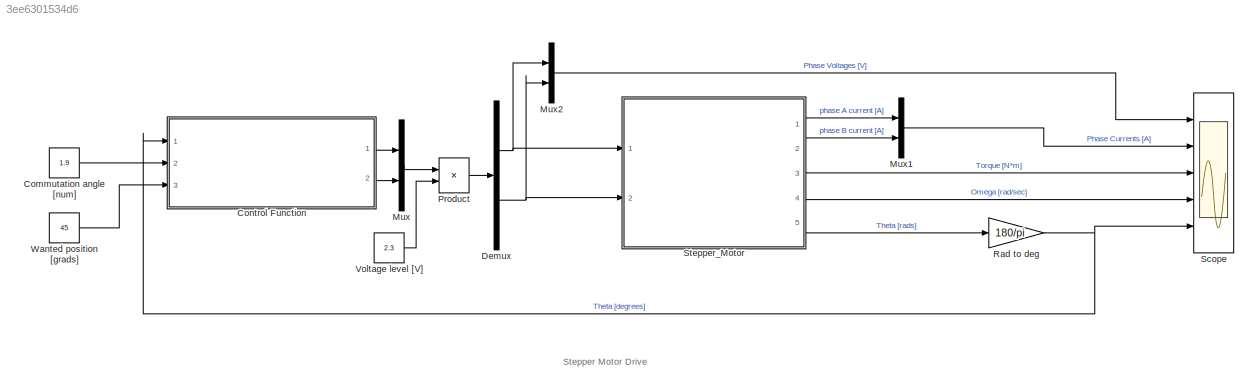
MODEL slx_3ee6301534d6
KIND model
CONFIG PreLoadFcn = assignin('base','Ts',1e-6);
WORKSPACE source: MAT-file member
WORKSPACE K_m = 0.4247
WORKSPACE D = 0.001
BLOCK [Constant] Commutation angle [num]
  Value = 1.9
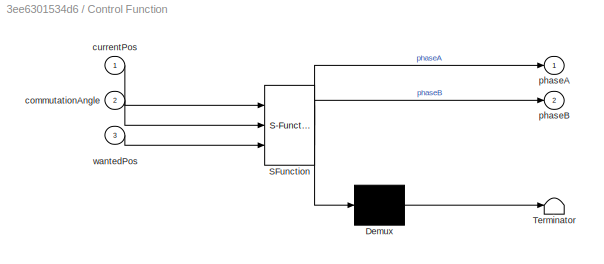
BLOCK [SubSystem] Control Function
  ErrorFcn = Stateflow.Translate.translate
  FunctionWithSeparateData = off
  MaskHideContents = off
  MinAlgLoopOccurrences = off
  Opaque = off
  PermitHierarchicalResolution = ExplicitOnly
  Ports = [3, 2]
  PropExecContextOutsideSubsystem = off
  RTWSystemCode = Auto
  RequestExecContextInheritance = off
  SFBlockType = MATLAB Function
  TreatAsAtomicUnit = on
BLOCK [Demux] Control Function/ Demux 
  Outputs = 1
  Ports = [1, 1]
BLOCK [S-Function] Control Function/ SFunction 
  EnableBusSupport = on
  FunctionName = sf_sfun
  PortCounts = [3 3]
  Ports = [3, 3]
  Tag = Stateflow S-Function steppermotor_not_matlab_model 2
BLOCK [Terminator] Control Function/ Terminator 
BLOCK [Inport] Control Function/commutationAngle
  IconDisplay = Port number
  Port = 2
BLOCK [Inport] Control Function/currentPos
  IconDisplay = Port number
BLOCK [Outport] Control Function/phaseA
  IconDisplay = Port number
BLOCK [Outport] Control Function/phaseB
  IconDisplay = Port number
  Port = 2
BLOCK [Inport] Control Function/wantedPos
  IconDisplay = Port number
  Port = 3
BLOCK [Demux] Demux
  DisplayOption = bar
  Outputs = 2
  Ports = [1, 2]
BLOCK [Mux] Mux
  DisplayOption = bar
  Inputs = 2
  Ports = [2, 1]
BLOCK [Mux] Mux1
  DisplayOption = bar
  Inputs = 2
  Ports = [2, 1]
BLOCK [Mux] Mux2
  DisplayOption = bar
  Inputs = 2
  Ports = [2, 1]
BLOCK [Product] Product
  InputSameDT = off
  OutDataTypeStr = Inherit: Inherit via internal rule
  Ports = [2, 1]
  RndMeth = Floor
  SaturateOnIntegerOverflow = off
BLOCK [Gain] Rad to deg
  Gain = 180/pi
  OutDataTypeStr = Inherit: Inherit via internal rule
  ParamDataTypeStr = Inherit: Inherit via internal rule
  SaturateOnIntegerOverflow = off
BLOCK [Scope] Scope
  DataFormat = StructureWithTime
  Floating = off
  LimitDataPoints = off
  NumInputPorts = 5
  Ports = [5]
  SampleTime = 0
  SaveName = ScopeData1
  ShowLegends = off
  YMax = 5~5~5~5~5
  YMin = -5~-5~-5~-5~-5
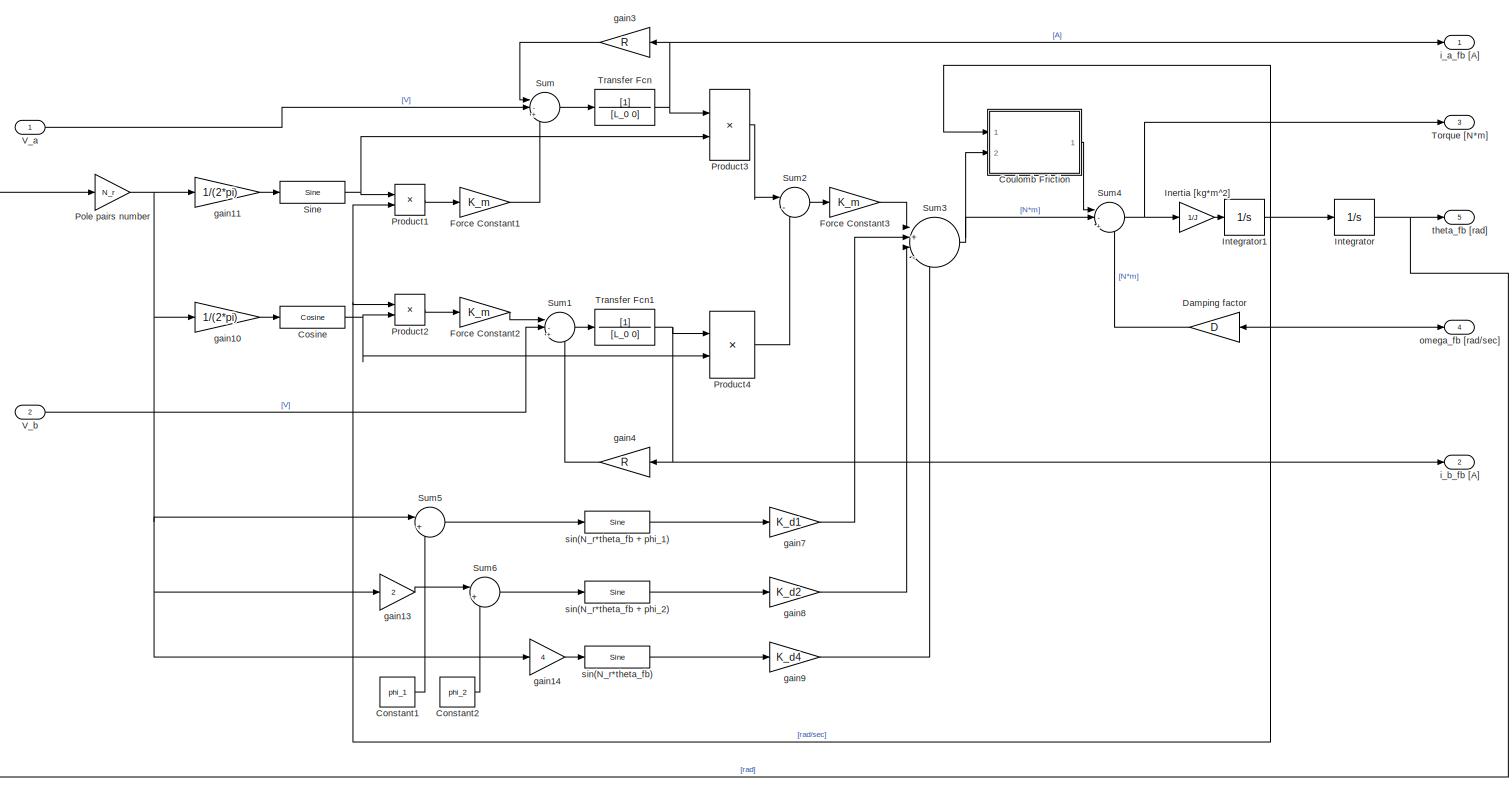
[diagram: Stepper_Motor - part 1/1, most of the canvas]
BLOCK [SubSystem] Stepper_Motor
  FunctionWithSeparateData = off
  MaskHideContents = off
  MinAlgLoopOccurrences = off
  Opaque = off
  Ports = [2, 5]
  PropExecContextOutsideSubsystem = off
  RTWSystemCode = Auto
  RequestExecContextInheritance = off
BLOCK [Constant] Stepper_Motor/Constant1
  Value = phi_1
BLOCK [Constant] Stepper_Motor/Constant2
  Value = phi_2
BLOCK [Reference] Stepper_Motor/Cosine  REF=simulink/Lookup
Tables/Cosine
  Formula = cos(2*pi*u)
  InternalRulePriority = Speed
  NumDataPoints = (2^5)+1
  OutputWordLength = 16
  Ports = [1, 1]
  SourceBlock = simulink/Lookup\nTables/Cosine
  SourceType = Sine and Cosine
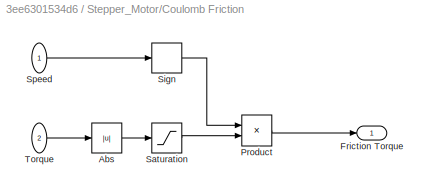
BLOCK [SubSystem] Stepper_Motor/Coulomb Friction
  FunctionWithSeparateData = off
  MaskHideContents = off
  MinAlgLoopOccurrences = off
  Opaque = off
  Ports = [2, 1]
  PropExecContextOutsideSubsystem = off
  RTWSystemCode = Auto
  RequestExecContextInheritance = off
BLOCK [Abs] Stepper_Motor/Coulomb Friction/Abs
  SaturateOnIntegerOverflow = off
BLOCK [Outport] Stepper_Motor/Coulomb Friction/Friction Torque
  IconDisplay = Port number
BLOCK [Product] Stepper_Motor/Coulomb Friction/Product
  InputSameDT = off
  OutDataTypeStr = Inherit: Inherit via internal rule
  Ports = [2, 1]
  RndMeth = Floor
  SaturateOnIntegerOverflow = off
BLOCK [Saturate] Stepper_Motor/Coulomb Friction/Saturation
  InputPortMap = u0
  LowerLimit = -F_s
  Ports = [1, 1]
  UpperLimit = F_s
BLOCK [Signum] Stepper_Motor/Coulomb Friction/Sign
BLOCK [Inport] Stepper_Motor/Coulomb Friction/Speed
  IconDisplay = Port number
BLOCK [Inport] Stepper_Motor/Coulomb Friction/Torque
  IconDisplay = Port number
  Port = 2
BLOCK [Gain] Stepper_Motor/Damping factor
  Gain = D
  OutDataTypeStr = Inherit: Inherit via internal rule
  ParamDataTypeStr = Inherit: Inherit via internal rule
  SaturateOnIntegerOverflow = off
BLOCK [Gain] Stepper_Motor/Force Constant1
  Gain = K_m
  OutDataTypeStr = Inherit: Inherit via internal rule
  ParamDataTypeStr = Inherit: Inherit via internal rule
  SaturateOnIntegerOverflow = off
BLOCK [Gain] Stepper_Motor/Force Constant2
  Gain = K_m
  OutDataTypeStr = Inherit: Inherit via internal rule
  ParamDataTypeStr = Inherit: Inherit via internal rule
  SaturateOnIntegerOverflow = off
BLOCK [Gain] Stepper_Motor/Force Constant3
  Gain = K_m
  OutDataTypeStr = Inherit: Inherit via internal rule
  ParamDataTypeStr = Inherit: Inherit via internal rule
  SaturateOnIntegerOverflow = off
BLOCK [Gain] Stepper_Motor/Inertia [kg*m^2]
  Gain = 1/J
  OutDataTypeStr = Inherit: Inherit via internal rule
  ParamDataTypeStr = Inherit: Inherit via internal rule
  SaturateOnIntegerOverflow = off
BLOCK [Integrator] Stepper_Motor/Integrator
  InitialCondition = start_angle
  Ports = [1, 1]
BLOCK [Integrator] Stepper_Motor/Integrator1
  InitialCondition = start_speed
  Ports = [1, 1]
BLOCK [Gain] Stepper_Motor/Pole pairs number
  Gain = N_r
  OutDataTypeStr = Inherit: Inherit via internal rule
  ParamDataTypeStr = Inherit: Inherit via internal rule
  SaturateOnIntegerOverflow = off
BLOCK [Product] Stepper_Motor/Product1
  InputSameDT = off
  OutDataTypeStr = Inherit: Inherit via internal rule
  Ports = [2, 1]
  RndMeth = Floor
  SaturateOnIntegerOverflow = off
BLOCK [Product] Stepper_Motor/Product2
  InputSameDT = off
  OutDataTypeStr = Inherit: Inherit via internal rule
  Ports = [2, 1]
  RndMeth = Floor
  SaturateOnIntegerOverflow = off
BLOCK [Product] Stepper_Motor/Product3
  InputSameDT = off
  OutDataTypeStr = Inherit: Inherit via internal rule
  Ports = [2, 1]
  RndMeth = Floor
  SaturateOnIntegerOverflow = off
BLOCK [Product] Stepper_Motor/Product4
  InputSameDT = off
  OutDataTypeStr = Inherit: Inherit via internal rule
  Ports = [2, 1]
  RndMeth = Floor
  SaturateOnIntegerOverflow = off
BLOCK [Reference] Stepper_Motor/Sine  REF=simulink/Lookup
Tables/Sine
  Formula = sin(2*pi*u)
  InternalRulePriority = Speed
  NumDataPoints = (2^5)+1
  OutputWordLength = 16
  Ports = [1, 1]
  SourceBlock = simulink/Lookup\nTables/Sine
  SourceType = Sine and Cosine
BLOCK [Sum] Stepper_Motor/Sum
  IconShape = round
  InputSameDT = off
  Inputs = |-++
  OutDataTypeStr = Inherit: Inherit via internal rule
  Ports = [3, 1]
  SaturateOnIntegerOverflow = off
BLOCK [Sum] Stepper_Motor/Sum1
  IconShape = round
  InputSameDT = off
  Inputs = |-+-
  OutDataTypeStr = Inherit: Inherit via internal rule
  Ports = [3, 1]
  SaturateOnIntegerOverflow = off
BLOCK [Sum] Stepper_Motor/Sum2
  IconShape = round
  InputSameDT = off
  Inputs = |-+
  OutDataTypeStr = Inherit: Inherit via internal rule
  Ports = [2, 1]
  SaturateOnIntegerOverflow = off
BLOCK [Sum] Stepper_Motor/Sum3
  IconShape = round
  InputSameDT = off
  Inputs = |+|---
  OutDataTypeStr = Inherit: Inherit via internal rule
  Ports = [4, 1]
  SaturateOnIntegerOverflow = off
BLOCK [Sum] Stepper_Motor/Sum4
  IconShape = round
  InputSameDT = off
  Inputs = |-|+-
  OutDataTypeStr = Inherit: Inherit via internal rule
  Ports = [3, 1]
  SaturateOnIntegerOverflow = off
BLOCK [Sum] Stepper_Motor/Sum5
  IconShape = round
  InputSameDT = off
  Inputs = |++
  OutDataTypeStr = Inherit: Inherit via internal rule
  Ports = [2, 1]
  SaturateOnIntegerOverflow = off
BLOCK [Sum] Stepper_Motor/Sum6
  IconShape = round
  InputSameDT = off
  Inputs = |++
  OutDataTypeStr = Inherit: Inherit via internal rule
  Ports = [2, 1]
  SaturateOnIntegerOverflow = off
BLOCK [Outport] Stepper_Motor/Torque [N*m]
  IconDisplay = Port number
  Port = 3
BLOCK [TransferFcn] Stepper_Motor/Transfer Fcn
  Denominator = [L_0 0]
BLOCK [TransferFcn] Stepper_Motor/Transfer Fcn1
  Denominator = [L_0 0]
BLOCK [Inport] Stepper_Motor/V_a
  IconDisplay = Port number
BLOCK [Inport] Stepper_Motor/V_b
  IconDisplay = Port number
  Port = 2
BLOCK [Gain] Stepper_Motor/gain10
  Gain = 1/(2*pi)
  OutDataTypeStr = Inherit: Inherit via internal rule
  ParamDataTypeStr = Inherit: Inherit via internal rule
  SaturateOnIntegerOverflow = off
BLOCK [Gain] Stepper_Motor/gain11
  Gain = 1/(2*pi)
  OutDataTypeStr = Inherit: Inherit via internal rule
  ParamDataTypeStr = Inherit: Inherit via internal rule
  SaturateOnIntegerOverflow = off
BLOCK [Gain] Stepper_Motor/gain13
  Gain = 2
  OutDataTypeStr = Inherit: Inherit via internal rule
  ParamDataTypeStr = Inherit: Inherit via internal rule
  SaturateOnIntegerOverflow = off
BLOCK [Gain] Stepper_Motor/gain14
  Gain = 4
  OutDataTypeStr = Inherit: Inherit via internal rule
  ParamDataTypeStr = Inherit: Inherit via internal rule
  SaturateOnIntegerOverflow = off
BLOCK [Gain] Stepper_Motor/gain3
  Gain = R
  OutDataTypeStr = Inherit: Inherit via internal rule
  ParamDataTypeStr = Inherit: Inherit via internal rule
  SaturateOnIntegerOverflow = off
BLOCK [Gain] Stepper_Motor/gain4
  Gain = R
  OutDataTypeStr = Inherit: Inherit via internal rule
  ParamDataTypeStr = Inherit: Inherit via internal rule
  SaturateOnIntegerOverflow = off
BLOCK [Gain] Stepper_Motor/gain7
  Gain = K_d1
  OutDataTypeStr = Inherit: Inherit via internal rule
  ParamDataTypeStr = Inherit: Inherit via internal rule
  SaturateOnIntegerOverflow = off
BLOCK [Gain] Stepper_Motor/gain8
  Gain = K_d2
  OutDataTypeStr = Inherit: Inherit via internal rule
  ParamDataTypeStr = Inherit: Inherit via internal rule
  SaturateOnIntegerOverflow = off
BLOCK [Gain] Stepper_Motor/gain9
  Gain = K_d4
  OutDataTypeStr = Inherit: Inherit via internal rule
  ParamDataTypeStr = Inherit: Inherit via internal rule
  SaturateOnIntegerOverflow = off
BLOCK [Outport] Stepper_Motor/i_a_fb [A]
  IconDisplay = Port number
BLOCK [Outport] Stepper_Motor/i_b_fb [A]
  IconDisplay = Port number
  Port = 2
BLOCK [Outport] Stepper_Motor/omega_fb [rad//sec]
  IconDisplay = Port number
  Port = 4
BLOCK [Reference] Stepper_Motor/sin(N_r*theta_fb + phi_1)  REF=simulink/Lookup
Tables/Sine
  Formula = sin(2*pi*u)
  InternalRulePriority = Speed
  NumDataPoints = (2^5)+1
  OutputWordLength = 16
  Ports = [1, 1]
  SourceBlock = simulink/Lookup\nTables/Sine
  SourceType = Sine and Cosine
BLOCK [Reference] Stepper_Motor/sin(N_r*theta_fb + phi_2)  REF=simulink/Lookup
Tables/Sine
  Formula = sin(2*pi*u)
  InternalRulePriority = Speed
  NumDataPoints = (2^5)+1
  OutputWordLength = 16
  Ports = [1, 1]
  SourceBlock = simulink/Lookup\nTables/Sine
  SourceType = Sine and Cosine
BLOCK [Reference] Stepper_Motor/sin(N_r*theta_fb)  REF=simulink/Lookup
Tables/Sine
  Formula = sin(2*pi*u)
  InternalRulePriority = Speed
  NumDataPoints = (2^5)+1
  OutputWordLength = 16
  Ports = [1, 1]
  SourceBlock = simulink/Lookup\nTables/Sine
  SourceType = Sine and Cosine
BLOCK [Outport] Stepper_Motor/theta_fb [rad]
  IconDisplay = Port number
  Port = 5
BLOCK [Constant] Voltage level [V]
  Value = 2.3
BLOCK [Constant] Wanted position [grads]
  Value = 45
ANNOTATION (root): Stepper Motor Drive
LINE Commutation angle [num]:1 -> Control Function:2
LINE Control Function:1 -> Mux:1
LINE Control Function:2 -> Mux:2
NET Demux:1 -> Mux2:1, Stepper_Motor:1
NET Demux:2 -> Mux2:2, Stepper_Motor:2
LINE Mux1:1 -> Scope:2
LINE Mux2:1 -> Scope:1
LINE Mux:1 -> Product:1
LINE Product:1 -> Demux:1
NET Rad to deg:1 -> Control Function:1, Scope:5
LINE Stepper_Motor/Constant1:1 -> Stepper_Motor/Sum5:2
LINE Stepper_Motor/Constant2:1 -> Stepper_Motor/Sum6:2
NET Stepper_Motor/Cosine:1 -> Stepper_Motor/Product2:2, Stepper_Motor/Product4:2
LINE Stepper_Motor/Coulomb Friction/Abs:1 -> Stepper_Motor/Coulomb Friction/Saturation:1
LINE Stepper_Motor/Coulomb Friction/Product:1 -> Stepper_Motor/Coulomb Friction/Friction Torque:1
LINE Stepper_Motor/Coulomb Friction/Saturation:1 -> Stepper_Motor/Coulomb Friction/Product:2
LINE Stepper_Motor/Coulomb Friction/Sign:1 -> Stepper_Motor/Coulomb Friction/Product:1
LINE Stepper_Motor/Coulomb Friction/Speed:1 -> Stepper_Motor/Coulomb Friction/Sign:1
LINE Stepper_Motor/Coulomb Friction/Torque:1 -> Stepper_Motor/Coulomb Friction/Abs:1
LINE Stepper_Motor/Coulomb Friction:1 -> Stepper_Motor/Sum4:1
LINE Stepper_Motor/Damping factor:1 -> Stepper_Motor/Sum4:3
LINE Stepper_Motor/Force Constant1:1 -> Stepper_Motor/Sum:3
LINE Stepper_Motor/Force Constant2:1 -> Stepper_Motor/Sum1:1
LINE Stepper_Motor/Force Constant3:1 -> Stepper_Motor/Sum3:1
LINE Stepper_Motor/Inertia [kg*m^2]:1 -> Stepper_Motor/Integrator1:1
NET Stepper_Motor/Integrator1:1 -> Stepper_Motor/Coulomb Friction:1, Stepper_Motor/Damping factor:1, Stepper_Motor/Integrator:1, Stepper_Motor/Product1:2, Stepper_Motor/Product2:1, Stepper_Motor/omega_fb [rad//sec]:1
NET Stepper_Motor/Integrator:1 -> Stepper_Motor/Pole pairs number:1, Stepper_Motor/theta_fb [rad]:1
NET Stepper_Motor/Pole pairs number:1 -> Stepper_Motor/Sum5:1, Stepper_Motor/gain10:1, Stepper_Motor/gain11:1, Stepper_Motor/gain13:1, Stepper_Motor/gain14:1
LINE Stepper_Motor/Product1:1 -> Stepper_Motor/Force Constant1:1
LINE Stepper_Motor/Product2:1 -> Stepper_Motor/Force Constant2:1
LINE Stepper_Motor/Product3:1 -> Stepper_Motor/Sum2:1
LINE Stepper_Motor/Product4:1 -> Stepper_Motor/Sum2:2
NET Stepper_Motor/Sine:1 -> Stepper_Motor/Product1:1, Stepper_Motor/Product3:2
LINE Stepper_Motor/Sum1:1 -> Stepper_Motor/Transfer Fcn1:1
LINE Stepper_Motor/Sum2:1 -> Stepper_Motor/Force Constant3:1
NET Stepper_Motor/Sum3:1 -> Stepper_Motor/Coulomb Friction:2, Stepper_Motor/Sum4:2
NET Stepper_Motor/Sum4:1 -> Stepper_Motor/Inertia [kg*m^2]:1, Stepper_Motor/Torque [N*m]:1
LINE Stepper_Motor/Sum5:1 -> Stepper_Motor/sin(N_r*theta_fb + phi_1):1
LINE Stepper_Motor/Sum6:1 -> Stepper_Motor/sin(N_r*theta_fb + phi_2):1
LINE Stepper_Motor/Sum:1 -> Stepper_Motor/Transfer Fcn:1
NET Stepper_Motor/Transfer Fcn1:1 -> Stepper_Motor/Product4:1, Stepper_Motor/gain4:1, Stepper_Motor/i_b_fb [A]:1
NET Stepper_Motor/Transfer Fcn:1 -> Stepper_Motor/Product3:1, Stepper_Motor/gain3:1, Stepper_Motor/i_a_fb [A]:1
LINE Stepper_Motor/V_a:1 -> Stepper_Motor/Sum:2
LINE Stepper_Motor/V_b:1 -> Stepper_Motor/Sum1:2
LINE Stepper_Motor/gain10:1 -> Stepper_Motor/Cosine:1
LINE Stepper_Motor/gain11:1 -> Stepper_Motor/Sine:1
LINE Stepper_Motor/gain13:1 -> Stepper_Motor/Sum6:1
LINE Stepper_Motor/gain14:1 -> Stepper_Motor/sin(N_r*theta_fb):1
LINE Stepper_Motor/gain3:1 -> Stepper_Motor/Sum:1
LINE Stepper_Motor/gain4:1 -> Stepper_Motor/Sum1:3
LINE Stepper_Motor/gain7:1 -> Stepper_Motor/Sum3:2
LINE Stepper_Motor/gain8:1 -> Stepper_Motor/Sum3:3
LINE Stepper_Motor/gain9:1 -> Stepper_Motor/Sum3:4
LINE Stepper_Motor/sin(N_r*theta_fb + phi_1):1 -> Stepper_Motor/gain7:1
LINE Stepper_Motor/sin(N_r*theta_fb + phi_2):1 -> Stepper_Motor/gain8:1
LINE Stepper_Motor/sin(N_r*theta_fb):1 -> Stepper_Motor/gain9:1
LINE Stepper_Motor:1 -> Mux1:1
LINE Stepper_Motor:2 -> Mux1:2
LINE Stepper_Motor:3 -> Scope:3
LINE Stepper_Motor:4 -> Scope:4
LINE Stepper_Motor:5 -> Rad to deg:1
LINE Voltage level [V]:1 -> Product:2
LINE Wanted position [grads]:1 -> Control Function:3
note: NET lines group one-source signal fan-out (src -> all destinations, sorted); 1:1 wires keep LINE
